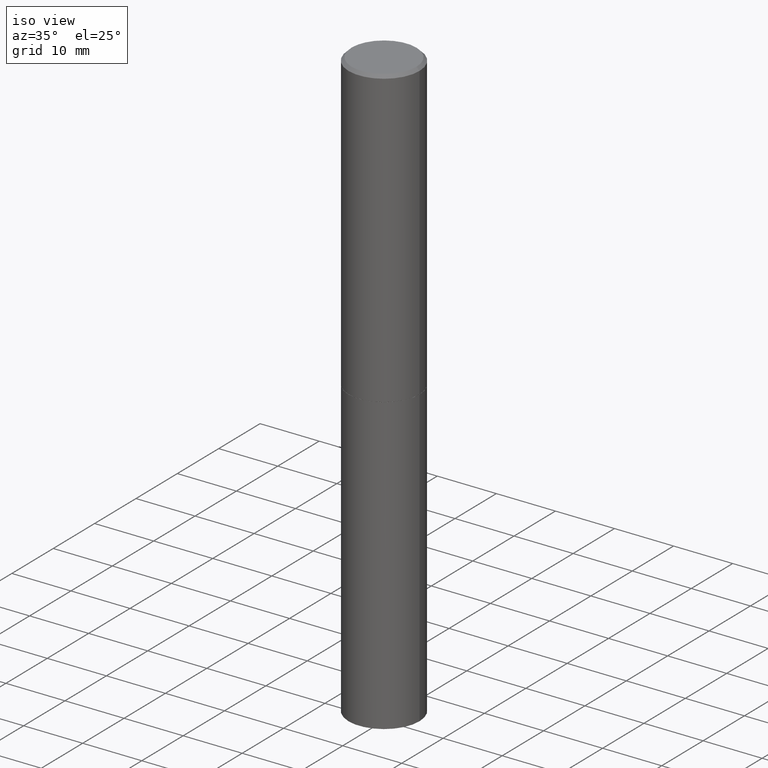
[diagram: clean part render]
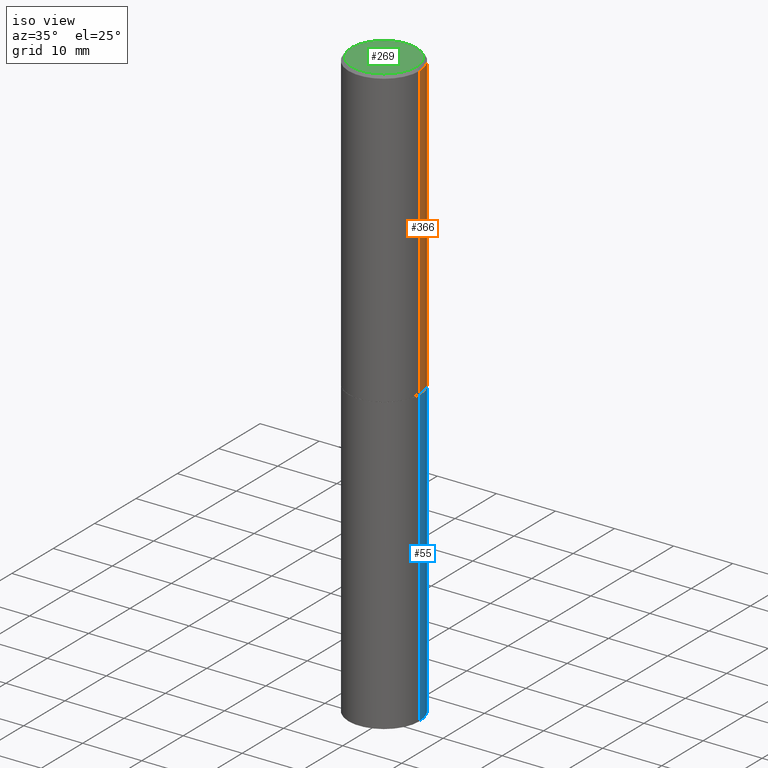
[diagram: same view with three faces highlighted in distinct colors, each labeled with its STEP entity id]
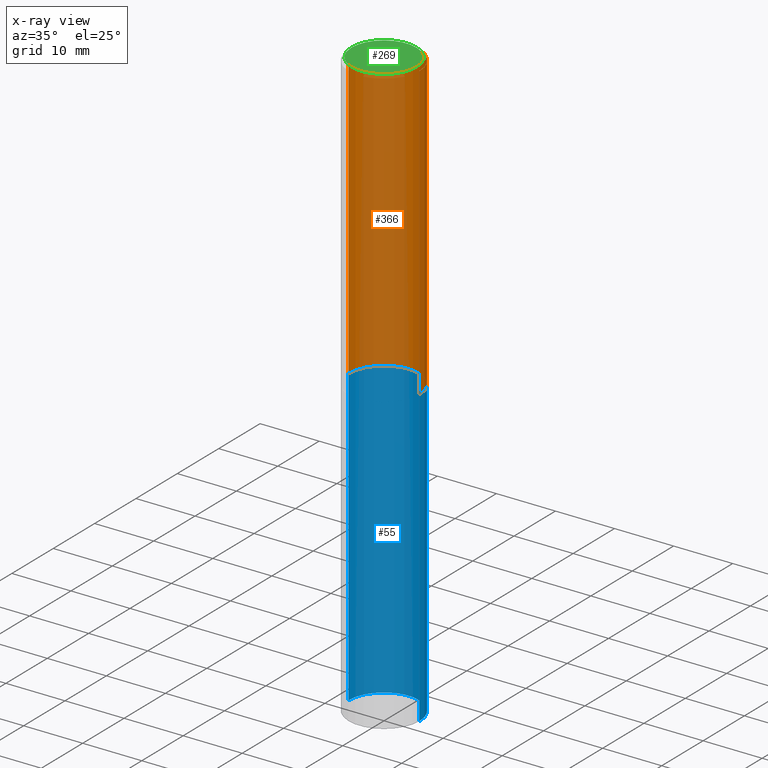
[diagram: x-ray of the same camera — body ghosted, the three highlighted faces saturated]
A machine part, iso view with three faces highlighted in distinct colors.
The next image is the same camera in x-ray (body ghosted, the three faces saturated) — at least one of them is partly hidden behind the body in this view.
Their STEP definitions:

[orange] entity #366 — the highlighted cylindrical surface (partial cylindrical patch) has radius 5.9995 mm, axis along (-0, 0, 1).
#13 = VERTEX_POINT ( 'NONE', #242 ) ;
#17 = CARTESIAN_POINT ( 'NONE',  ( 4.890937612370292426E-31, -6.982962677686317493E-17, -0.02000000000000007674 ) ) ;
#20 = CARTESIAN_POINT ( 'NONE',  ( 0.2361999999999999933, -8.518865318643383648E-15, -1.967500000000000027 ) ) ;
#31 = VECTOR ( 'NONE', #276, 39.37007874015748143 ) ;
#34 = CYLINDRICAL_SURFACE ( 'NONE', #153, 0.2361999999999998545 ) ;
#36 = DIRECTION ( 'NONE',  ( 1.000000000000000000, -6.982962677686266711E-15, 4.876176775795935793E-29 ) ) ;
#43 = CIRCLE ( 'NONE', #201, 0.2361999999999997712 ) ;
#56 = CARTESIAN_POINT ( 'NONE',  ( 4.811459876169256232E-29, -6.869489534173888700E-15, -1.967500000000000027 ) ) ;
#57 = CARTESIAN_POINT ( 'NONE',  ( 0.000000000000000000, 0.000000000000000000, 0.000000000000000000 ) ) ;
#60 = DIRECTION ( 'NONE',  ( -2.445468806185136597E-29, 3.491481338843145583E-15, 1.000000000000000000 ) ) ;
#69 = ORIENTED_EDGE ( 'NONE', *, *, #80, .T. ) ;
#80 = EDGE_CURVE ( 'NONE', #111, #175, #257, .T. ) ;
#85 = DIRECTION ( 'NONE',  ( 1.000000000000000000, -6.982962677686265133E-15, 0.000000000000000000 ) ) ;
#96 = ORIENTED_EDGE ( 'NONE', *, *, #360, .T. ) ;
#108 = ORIENTED_EDGE ( 'NONE', *, *, #281, .F. ) ;
#111 = VERTEX_POINT ( 'NONE', #20 ) ;
#128 = VECTOR ( 'NONE', #184, 39.37007874015748143 ) ;
#152 = VERTEX_POINT ( 'NONE', #309 ) ;
#153 = AXIS2_PLACEMENT_3D ( 'NONE', #57, #162, #36 ) ;
#158 = AXIS2_PLACEMENT_3D ( 'NONE', #56, #60, #85 ) ;
#162 = DIRECTION ( 'NONE',  ( -2.445468806185136597E-29, 3.491481338843145583E-15, 1.000000000000000000 ) ) ;
#167 = CARTESIAN_POINT ( 'NONE',  ( -0.2361999999999998545, 1.678301941865355605E-15, -1.161852468318208056E-29 ) ) ;
#175 = VERTEX_POINT ( 'NONE', #314 ) ;
#184 = DIRECTION ( 'NONE',  ( -2.445468806185136877E-29, 3.491481338843145188E-15, 1.000000000000000000 ) ) ;
#188 = LINE ( 'NONE', #167, #31 ) ;
#190 = EDGE_CURVE ( 'NONE', #152, #13, #43, .T. ) ;
#191 = EDGE_LOOP ( 'NONE', ( #69, #96, #226, #108 ) ) ;
#201 = AXIS2_PLACEMENT_3D ( 'NONE', #17, #320, #353 ) ;
#210 = LINE ( 'NONE', #362, #128 ) ;
#222 = FACE_OUTER_BOUND ( 'NONE', #191, .T. ) ;
#226 = ORIENTED_EDGE ( 'NONE', *, *, #190, .F. ) ;
#242 = CARTESIAN_POINT ( 'NONE',  ( -0.2361999999999997712, 1.579546157692631452E-15, -0.02000000000000007674 ) ) ;
#257 = CIRCLE ( 'NONE', #158, 0.2361999999999999933 ) ;
#276 = DIRECTION ( 'NONE',  ( -2.445468806185136877E-29, 3.491481338843145188E-15, 1.000000000000000000 ) ) ;
#281 = EDGE_CURVE ( 'NONE', #111, #152, #210, .T. ) ;
#309 = CARTESIAN_POINT ( 'NONE',  ( 0.2361999999999997712, -1.690279253850497193E-15, -0.02000000000000007674 ) ) ;
#314 = CARTESIAN_POINT ( 'NONE',  ( -0.2362000000000000210, -1.791357638610017633E-15, -1.967500000000000027 ) ) ;
#320 = DIRECTION ( 'NONE',  ( -2.445468806185136597E-29, 3.491481338843145583E-15, 1.000000000000000000 ) ) ;
#353 = DIRECTION ( 'NONE',  ( 1.000000000000000000, -6.982962677686266711E-15, 0.000000000000000000 ) ) ;
#360 = EDGE_CURVE ( 'NONE', #175, #13, #188, .T. ) ;
#362 = CARTESIAN_POINT ( 'NONE',  ( 0.2361999999999998545, -1.649375784469495145E-15, 1.151752954442999387E-29 ) ) ;
#366 = ADVANCED_FACE ( 'NONE', ( #222 ), #34, .T. ) ;

[blue] entity #55 — the highlighted cylindrical surface (partial cylindrical patch) has radius 5.9995 mm, axis along (-0, 0, 1).
#6 = FACE_OUTER_BOUND ( 'NONE', #196, .T. ) ;
#45 = ORIENTED_EDGE ( 'NONE', *, *, #177, .F. ) ;
#47 = CARTESIAN_POINT ( 'NONE',  ( 0.2361999999999999933, -1.539533781549495994E-14, -3.937000000000000277 ) ) ;
#55 = ADVANCED_FACE ( 'NONE', ( #6 ), #187, .T. ) ;
#65 = DIRECTION ( 'NONE',  ( -2.445468806185136597E-29, 3.491481338843145583E-15, 1.000000000000000000 ) ) ;
#84 = AXIS2_PLACEMENT_3D ( 'NONE', #160, #130, #104 ) ;
#92 = CIRCLE ( 'NONE', #84, 0.2361999999999999933 ) ;
#93 = EDGE_CURVE ( 'NONE', #343, #149, #136, .T. ) ;
#99 = EDGE_CURVE ( 'NONE', #342, #275, #118, .T. ) ;
#104 = DIRECTION ( 'NONE',  ( 1.000000000000000000, -6.982962677686265133E-15, 0.000000000000000000 ) ) ;
#112 = DIRECTION ( 'NONE',  ( 1.000000000000000000, -6.982962677686266711E-15, 4.876176775795936353E-29 ) ) ;
#114 = DIRECTION ( 'NONE',  ( -2.445468806185136877E-29, 3.491481338843145188E-15, 1.000000000000000000 ) ) ;
#116 = AXIS2_PLACEMENT_3D ( 'NONE', #172, #65, #350 ) ;
#118 = LINE ( 'NONE', #338, #261 ) ;
#130 = DIRECTION ( 'NONE',  ( -2.445468806185136597E-29, 3.491481338843145583E-15, 1.000000000000000000 ) ) ;
#136 = LINE ( 'NONE', #138, #140 ) ;
#138 = CARTESIAN_POINT ( 'NONE',  ( -0.2361999999999999933, 1.678301941865356591E-15, -1.161852468318208757E-29 ) ) ;
#140 = VECTOR ( 'NONE', #345, 39.37007874015748143 ) ;
#145 = CIRCLE ( 'NONE', #116, 0.2361999999999999933 ) ;
#149 = VERTEX_POINT ( 'NONE', #258 ) ;
#160 = CARTESIAN_POINT ( 'NONE',  ( 9.627810689950883669E-29, -1.374596203102546341E-14, -3.937000000000000277 ) ) ;
#172 = CARTESIAN_POINT ( 'NONE',  ( 4.813905344975441835E-29, -6.872981015512731707E-15, -1.968500000000000139 ) ) ;
#177 = EDGE_CURVE ( 'NONE', #275, #149, #145, .T. ) ;
#187 = CYLINDRICAL_SURFACE ( 'NONE', #339, 0.2361999999999999933 ) ;
#189 = DIRECTION ( 'NONE',  ( -2.445468806185136597E-29, 3.491481338843145583E-15, 1.000000000000000000 ) ) ;
#196 = EDGE_LOOP ( 'NONE', ( #204, #240, #45, #303 ) ) ;
#204 = ORIENTED_EDGE ( 'NONE', *, *, #298, .T. ) ;
#236 = CARTESIAN_POINT ( 'NONE',  ( 0.2361999999999999933, -8.522356799982228232E-15, -1.968500000000000139 ) ) ;
#240 = ORIENTED_EDGE ( 'NONE', *, *, #93, .T. ) ;
#258 = CARTESIAN_POINT ( 'NONE',  ( -0.2361999999999999933, -8.631169581403741167E-15, -1.968500000000000139 ) ) ;
#261 = VECTOR ( 'NONE', #114, 39.37007874015748143 ) ;
#275 = VERTEX_POINT ( 'NONE', #236 ) ;
#298 = EDGE_CURVE ( 'NONE', #342, #343, #92, .T. ) ;
#302 = CARTESIAN_POINT ( 'NONE',  ( -0.2361999999999999933, -8.631169581403741167E-15, -3.937000000000000277 ) ) ;
#303 = ORIENTED_EDGE ( 'NONE', *, *, #99, .F. ) ;
#307 = CARTESIAN_POINT ( 'NONE',  ( 0.000000000000000000, 0.000000000000000000, 0.000000000000000000 ) ) ;
#338 = CARTESIAN_POINT ( 'NONE',  ( 0.2361999999999999933, -1.649375784469496131E-15, 1.151752954443000088E-29 ) ) ;
#339 = AXIS2_PLACEMENT_3D ( 'NONE', #307, #189, #112 ) ;
#342 = VERTEX_POINT ( 'NONE', #47 ) ;
#343 = VERTEX_POINT ( 'NONE', #302 ) ;
#345 = DIRECTION ( 'NONE',  ( -2.445468806185136877E-29, 3.491481338843145188E-15, 1.000000000000000000 ) ) ;
#350 = DIRECTION ( 'NONE',  ( 1.000000000000000000, -6.982962677686269077E-15, 0.000000000000000000 ) ) ;

[green] entity #269 — the highlighted planar face has unit normal (0, -0, -1).
#9 = ORIENTED_EDGE ( 'NONE', *, *, #255, .T. ) ;
#21 = EDGE_LOOP ( 'NONE', ( #9, #143 ) ) ;
#51 = PLANE ( 'NONE',  #318 ) ;
#53 = DIRECTION ( 'NONE',  ( 2.438088387897960049E-29, -3.491481338843145188E-15, -1.000000000000000000 ) ) ;
#73 = CARTESIAN_POINT ( 'NONE',  ( 0.2161999999999997257, -1.586759460484350213E-15, 4.268512490111238857E-18 ) ) ;
#98 = DIRECTION ( 'NONE',  ( 1.000000000000000000, -6.982962677686267499E-15, 4.876217060660161841E-29 ) ) ;
#100 = DIRECTION ( 'NONE',  ( 1.000000000000000000, -6.982962677686267499E-15, 4.876217060660161841E-29 ) ) ;
#103 = CARTESIAN_POINT ( 'NONE',  ( 1.509716530915768746E-15, 0.2161999999999997257, -7.527240092128370190E-16 ) ) ;
#126 = FACE_OUTER_BOUND ( 'NONE', #21, .T. ) ;
#129 = CARTESIAN_POINT ( 'NONE',  ( -1.043851414335219820E-46, 1.490343170380447200E-32, 4.268512490100411279E-18 ) ) ;
#143 = ORIENTED_EDGE ( 'NONE', *, *, #326, .T. ) ;
#171 = CIRCLE ( 'NONE', #310, 0.2161999999999997257 ) ;
#183 = CARTESIAN_POINT ( 'NONE',  ( -1.043851414335219820E-46, 1.490343170380447200E-32, 4.268512490100411279E-18 ) ) ;
#185 = AXIS2_PLACEMENT_3D ( 'NONE', #183, #291, #98 ) ;
#245 = CIRCLE ( 'NONE', #185, 0.2161999999999997257 ) ;
#255 = EDGE_CURVE ( 'NONE', #365, #333, #171, .T. ) ;
#269 = ADVANCED_FACE ( 'NONE', ( #126 ), #51, .F. ) ;
#291 = DIRECTION ( 'NONE',  ( -2.445468806185136597E-29, 3.491481338843145583E-15, 1.000000000000000000 ) ) ;
#293 = DIRECTION ( 'NONE',  ( -2.445468806185136597E-29, 3.491481338843145583E-15, 1.000000000000000000 ) ) ;
#300 = CARTESIAN_POINT ( 'NONE',  ( -0.2161999999999997257, 1.544631344304200197E-15, 4.268512490089730842E-18 ) ) ;
#310 = AXIS2_PLACEMENT_3D ( 'NONE', #129, #293, #100 ) ;
#318 = AXIS2_PLACEMENT_3D ( 'NONE', #103, #53, #328 ) ;
#326 = EDGE_CURVE ( 'NONE', #333, #365, #245, .T. ) ;
#328 = DIRECTION ( 'NONE',  ( -1.000000000000000000, 6.982962677686265922E-15, -4.876176775795935793E-29 ) ) ;
#333 = VERTEX_POINT ( 'NONE', #73 ) ;
#365 = VERTEX_POINT ( 'NONE', #300 ) ;